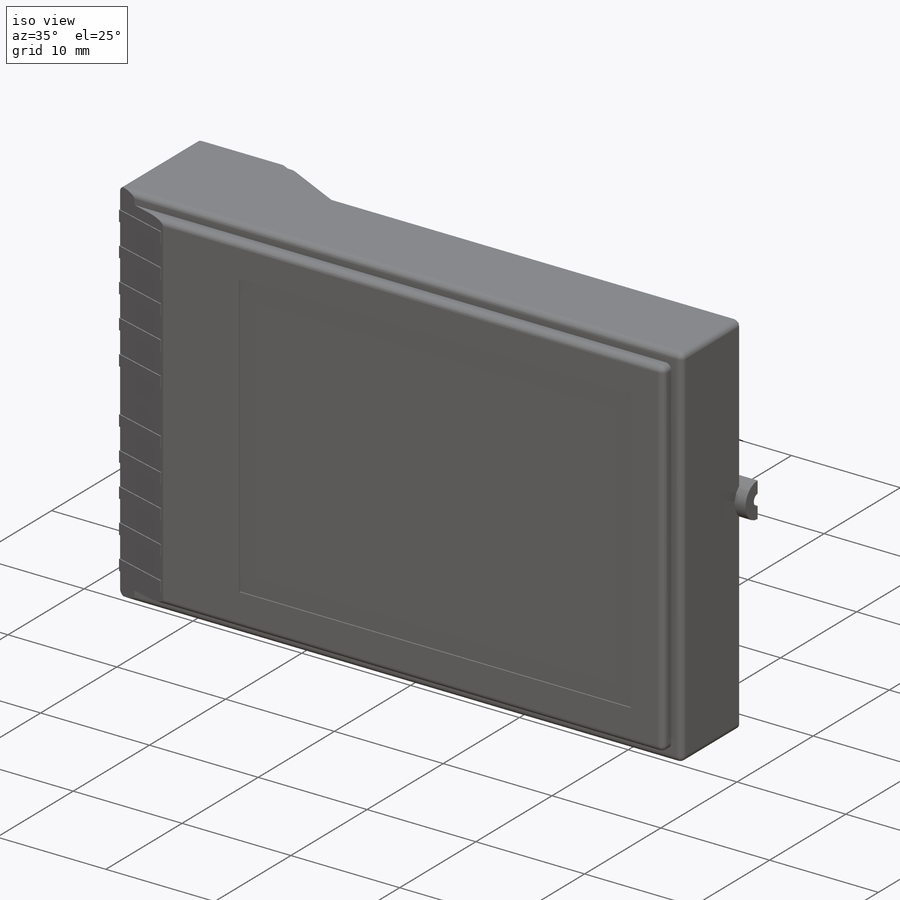
[diagram: iso view]
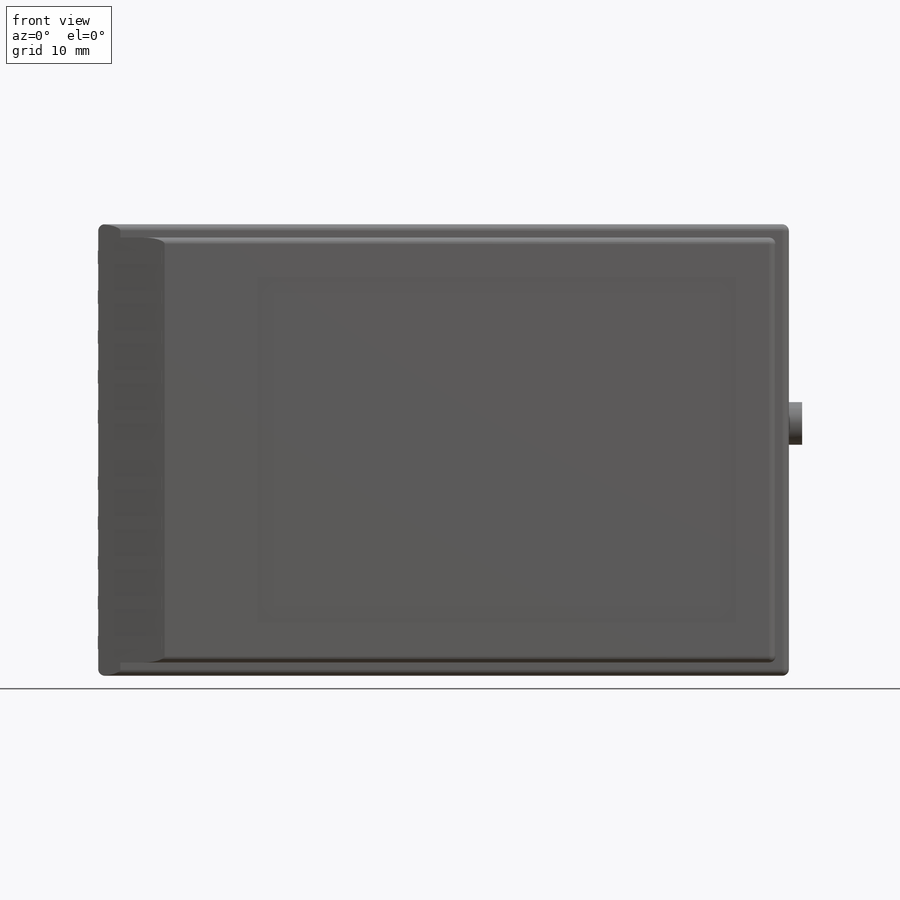
[diagram: front view]
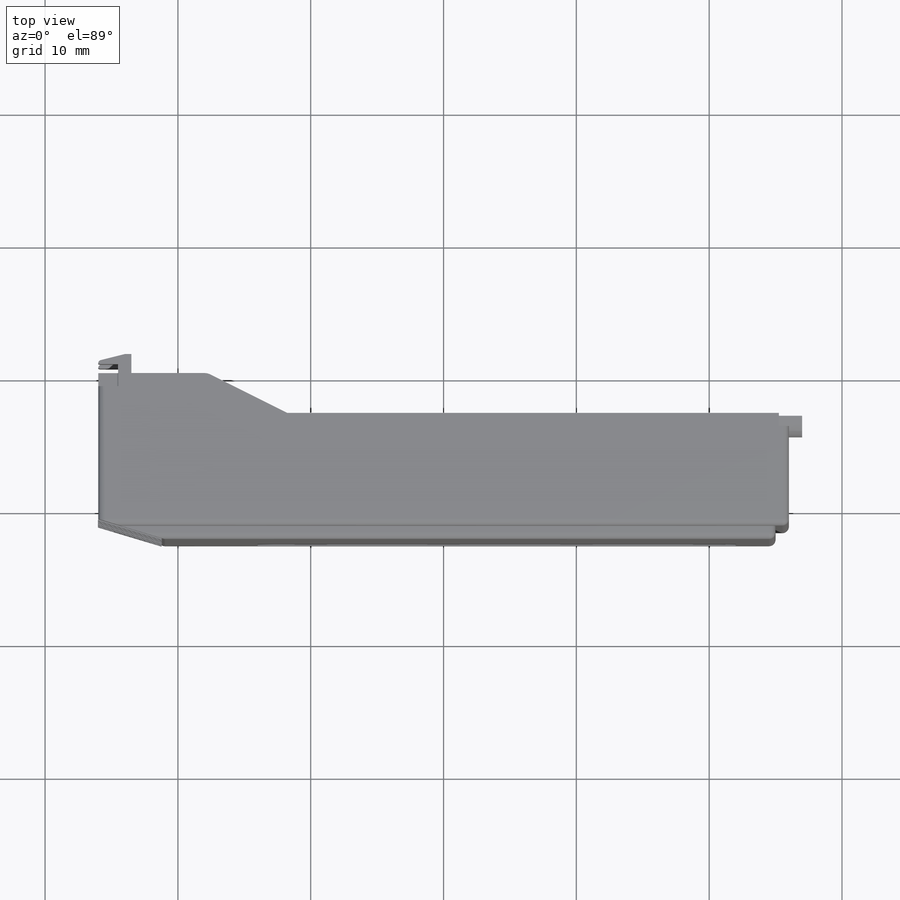
[diagram: top view]
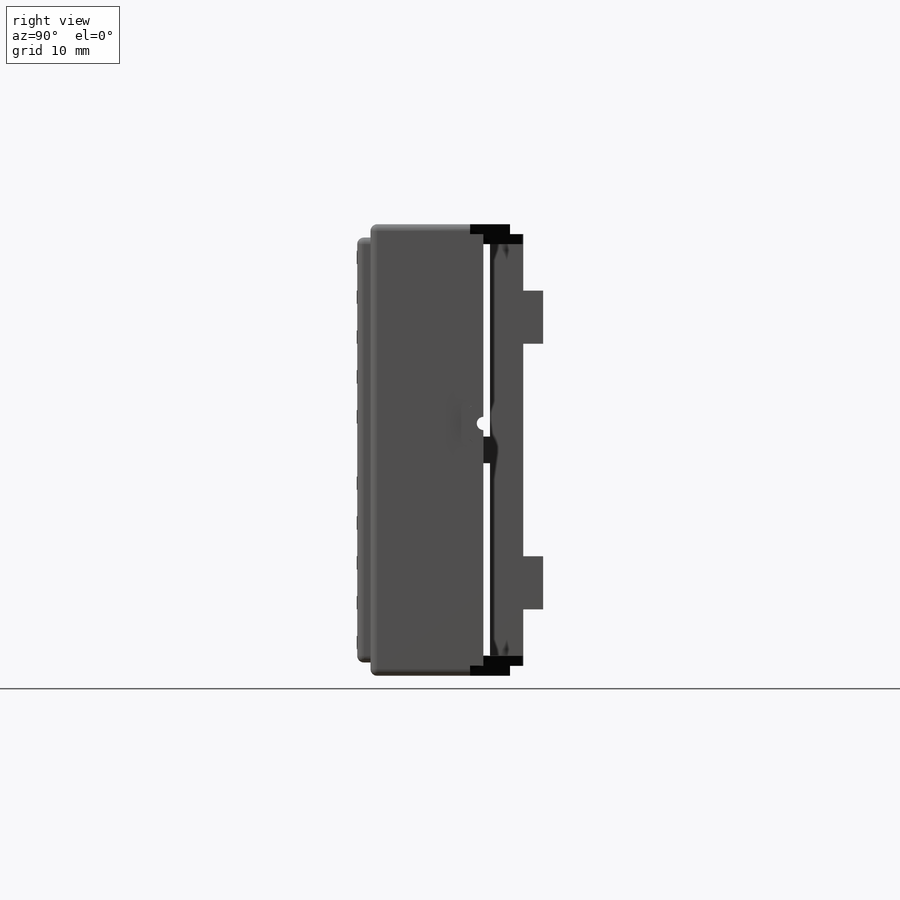
[diagram: right view]
SOLIDWORKS PART (.sldprt)
format: sldprt  version: not decoded by parser v0  size: 929,280 bytes
history: native  units: mm
features: sketch x16, extrude x8, cut_extrude x7, chamfer x5, mirror x4, fillet x4, plane x3, material x1, shell x1, revolve x1 (+10 scaffold rows collapsed)
feature tree (60):
  scaffold x10  (default folders/planes/origin — collapsed)
  material  "Matériau <non spécifié>"
  plane  "Plan de face"
  plane  "Plan de dessus"
  plane  "Plan de droite"
  sketch  "Esquisse1"  dims[D1=52.0mm D2=34.0mm]
  extrude  "Boss.-Extru.1"  Depth=12.5mm
  shell  "Coque1"  Thickness=1.5mm
  sketch  "Esquisse3"  dims[D3=0.1mm D1=0.0mm D2=0.75mm]
  cut_extrude  "Enlèv. mat.-Extru.4"  Depth=1mm
  sketch  "Esquisse6"  dims[c1.D1=8.0mm c1.D2=3.0mm c1.D3=7.0mm c2.D1=8.0mm c2.D2=44.0mm c3.D2=90.0deg c4.D2=2.0mm c4.D3=7.0mm]
  cut_extrude  "Enlèv. mat.-Extru.6"  [1 undecoded]
  chamfer  "Chanfrein1"  Distance=6mm
  mirror  "Symétrie2"
  sketch  "Esquisse10"  dims[c1.D5=0.75mm c1.D1=0.0mm c1.D2=0.0mm c1.D3=1.0mm c1.D4=1.0mm c2.D3=1.0mm]
  extrude  "Boss.-Extru.2"  Depth=0.75mm
  mirror  "Symétrie3"
  sketch  "Esquisse11"
  extrude  "Boss.-Extru.3"  Depth=1mm
  sketch  "Esquisse12"  dims[D1=0.0mm]
  extrude  "Boss.-Extru.4"  [1 undecoded]
  mirror  "Symétrie4"
  sketch  "Esquisse14"  dims[c1.D1=~1.103901mm c1.D2=~1.103901mm c2.D1=1.25mm]
  revolve  "Révolution1"  Angle=180deg
  sketch  "Esquisse15"  dims[D1=1.0mm]
  cut_extrude  "Enlèv. mat.-Extru.7"  [1 undecoded]
  sketch  "Esquisse16"  dims[D1=14.5mm D2=1.0mm D3=2.5mm D4=1.0mm D5=1.0mm D6=2.0mm D7=1.0mm D9=1.75mm D10=2.0mm D11=1.0mm D8=4.0 D12=4.0]
  cut_extrude  "Enlèv. mat.-Extru.8"  [1 undecoded]
  sketch  "Esquisse17"  dims[D1=0.0mm]
  extrude  "Boss.-Extru.5"  Depth=1mm
  chamfer  "Chanfrein2"  Distance=4mm
  sketch  "Esquisse20"  dims[D1=0.0mm D2=1.0mm]
  cut_extrude  "Enlèv. mat.-Extru.9"  Depth=1mm
  chamfer  "Chanfrein4"  Distance=1.5mm
  sketch  "Esquisse21"  dims[D1=1.0mm D2=5.0mm D3=2.0mm D4=5.0 D5=5.0]
  extrude  "Boss.-Extru.8"  Depth=0.1mm
  sketch  "Esquisse22"  dims[D3=7.0mm D1=0.0mm D2=3.0mm]
  cut_extrude  "Enlèv. mat.-Extru.10"  Depth=0.1mm
  fillet  "Congé3"  Radius=0.5mm
  fillet  "Congé4"  Radius=3mm
  fillet  "Congé5"  Radius=1.5mm
  chamfer  "Chanfrein5"  Distance=1mm Angle=45deg
  sketch  "Esquisse23"  dims[D1=0.0mm D2=0.0mm]
  cut_extrude  "Enlèv. mat.-Extru.11"  Depth=0.5mm
  sketch  "Esquisse25"  dims[c1.D1=7.875mm c1.D2=12.0mm c1.D3=1.0mm c2.D2=4.0mm]
  extrude  "Boss.-Extru.9"  Depth=0.5mm
  sketch  "Esquisse26"  dims[D1=2.5mm]
  extrude  "Boss.-Extru.10"  Depth=0.5mm
  chamfer  "Chanfrein6"  Distance=0.25mm
  fillet  "Congé9"  Radius=0.25mm
  mirror  "Symétrie10"
decode coverage: 37 of 46 modeling features carry decoded parameters
note: ~ marks probable driven/reference dimensions
note: 4 parameter values undecoded
summary: no parameter record found for 4 features
note: suppression state not decoded; provenance and decode notes live in map.json
